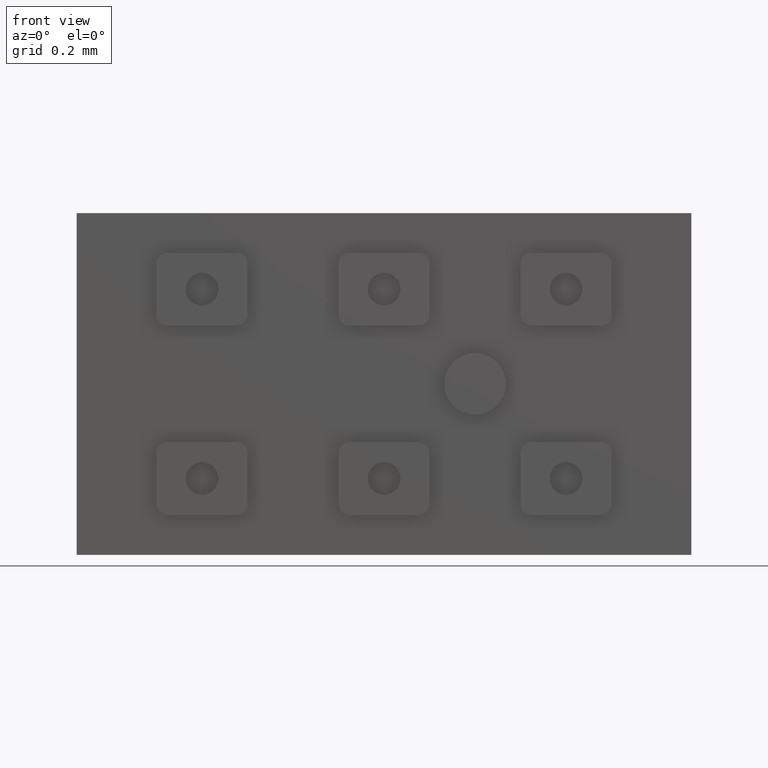
[diagram: clean part render]
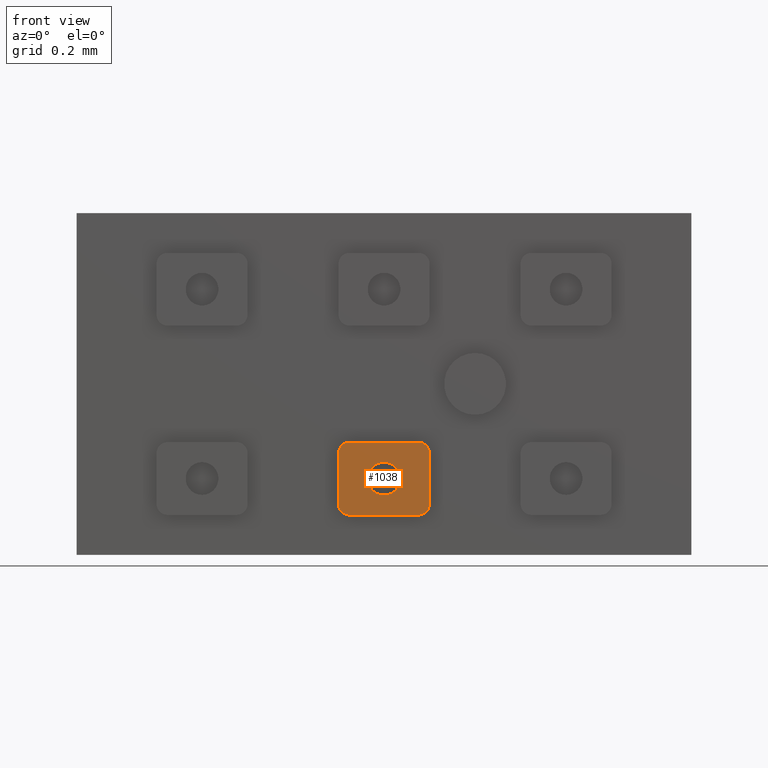
[diagram: same view with one face highlighted and labeled with its STEP entity id]
A machine part, front view. The second image highlights one B-rep face of the part: STEP entity #1038.
In plain terms, the highlighted planar face has unit normal (0, 1, 0).
Its self-contained STEP definition (entity closure, byte-faithful):
#40 = VECTOR ( 'NONE', #1185, 1000.000000000000000 ) ;
#59 = EDGE_CURVE ( 'NONE', #1831, #2216, #1212, .T. ) ;
#66 = DIRECTION ( 'NONE',  ( 0.000000000000000000, 1.000000000000000000, 0.000000000000000000 ) ) ;
#78 = CARTESIAN_POINT ( 'NONE',  ( -0.09500000000000002887, -0.2750000000000000222, -0.1599999999999965061 ) ) ;
#103 = VERTEX_POINT ( 'NONE', #866 ) ;
#109 = DIRECTION ( 'NONE',  ( 0.000000000000000000, 0.000000000000000000, 1.000000000000000000 ) ) ;
#111 = CARTESIAN_POINT ( 'NONE',  ( -0.1250000000000000000, -0.2750000000000000222, -0.1899999999999964773 ) ) ;
#125 = DIRECTION ( 'NONE',  ( 0.000000000000000000, 0.000000000000000000, -1.000000000000000000 ) ) ;
#191 = ORIENTED_EDGE ( 'NONE', *, *, #1364, .F. ) ;
#225 = EDGE_CURVE ( 'NONE', #559, #1011, #1842, .T. ) ;
#245 = LINE ( 'NONE', #895, #2153 ) ;
#262 = DIRECTION ( 'NONE',  ( 0.000000000000000000, 1.000000000000000000, 0.000000000000000000 ) ) ;
#287 = LINE ( 'NONE', #446, #1399 ) ;
#302 = CARTESIAN_POINT ( 'NONE',  ( 0.1250000000000000555, -0.2750000000000000222, -0.3299999999999965183 ) ) ;
#308 = DIRECTION ( 'NONE',  ( 0.000000000000000000, 1.000000000000000000, 0.000000000000000000 ) ) ;
#317 = ORIENTED_EDGE ( 'NONE', *, *, #2331, .F. ) ;
#327 = CIRCLE ( 'NONE', #500, 0.02999999999999997113 ) ;
#330 = AXIS2_PLACEMENT_3D ( 'NONE', #1470, #2228, #1284 ) ;
#344 = ORIENTED_EDGE ( 'NONE', *, *, #1436, .F. ) ;
#374 = VERTEX_POINT ( 'NONE', #1966 ) ;
#385 = ORIENTED_EDGE ( 'NONE', *, *, #643, .F. ) ;
#388 = CARTESIAN_POINT ( 'NONE',  ( -0.1250000000000000000, -0.2750000000000000222, -0.3299999999999965183 ) ) ;
#428 = ORIENTED_EDGE ( 'NONE', *, *, #59, .T. ) ;
#434 = CARTESIAN_POINT ( 'NONE',  ( 0.000000000000000000, -0.2750000000000000222, -0.2149999999999967215 ) ) ;
#435 = EDGE_CURVE ( 'NONE', #1529, #984, #327, .T. ) ;
#446 = CARTESIAN_POINT ( 'NONE',  ( 0.1250000000000001110, -0.2750000000000000222, -0.3299999999999965183 ) ) ;
#500 = AXIS2_PLACEMENT_3D ( 'NONE', #1009, #1395, #1380 ) ;
#510 = DIRECTION ( 'NONE',  ( 0.000000000000000000, 1.000000000000000000, 0.000000000000000000 ) ) ;
#559 = VERTEX_POINT ( 'NONE', #1270 ) ;
#584 = EDGE_LOOP ( 'NONE', ( #385, #344, #2299, #1929, #2007, #317, #2237, #191 ) ) ;
#612 = AXIS2_PLACEMENT_3D ( 'NONE', #1432, #262, #1687 ) ;
#613 = VERTEX_POINT ( 'NONE', #302 ) ;
#625 = AXIS2_PLACEMENT_3D ( 'NONE', #849, #66, #109 ) ;
#641 = DIRECTION ( 'NONE',  ( -1.000000000000000000, -0.000000000000000000, -0.000000000000000000 ) ) ;
#643 = EDGE_CURVE ( 'NONE', #374, #103, #1083, .T. ) ;
#720 = DIRECTION ( 'NONE',  ( 0.000000000000000000, 1.000000000000000000, -0.000000000000000000 ) ) ;
#817 = AXIS2_PLACEMENT_3D ( 'NONE', #1135, #308, #1106 ) ;
#849 = CARTESIAN_POINT ( 'NONE',  ( -0.09500000000000002887, -0.2750000000000000222, -0.3299999999999965183 ) ) ;
#859 = CIRCLE ( 'NONE', #817, 0.03000000000000002318 ) ;
#866 = CARTESIAN_POINT ( 'NONE',  ( -0.1250000000000000000, -0.2750000000000000222, -0.3299999999999965183 ) ) ;
#895 = CARTESIAN_POINT ( 'NONE',  ( -0.09500000000000002887, -0.2750000000000000222, -0.3599999999999964895 ) ) ;
#900 = VECTOR ( 'NONE', #1663, 1000.000000000000000 ) ;
#966 = CARTESIAN_POINT ( 'NONE',  ( 0.09500000000000002887, -0.2750000000000000222, -0.3599999999999964895 ) ) ;
#984 = VERTEX_POINT ( 'NONE', #1174 ) ;
#987 = EDGE_LOOP ( 'NONE', ( #1405, #428 ) ) ;
#1009 = CARTESIAN_POINT ( 'NONE',  ( -0.09500000000000002887, -0.2750000000000000222, -0.1899999999999964773 ) ) ;
#1011 = VERTEX_POINT ( 'NONE', #1873 ) ;
#1026 = EDGE_CURVE ( 'NONE', #1011, #613, #287, .T. ) ;
#1038 = ADVANCED_FACE ( 'NONE', ( #1051, #1884 ), #1850, .F. ) ;
#1051 = FACE_BOUND ( 'NONE', #987, .T. ) ;
#1068 = CARTESIAN_POINT ( 'NONE',  ( 5.510910596163072607E-18, -0.2750000000000000222, -0.3049999999999963851 ) ) ;
#1083 = CIRCLE ( 'NONE', #625, 0.02999999999999997113 ) ;
#1101 = CARTESIAN_POINT ( 'NONE',  ( 0.000000000000000000, -0.2750000000000000222, -0.2599999999999965672 ) ) ;
#1106 = DIRECTION ( 'NONE',  ( 0.000000000000000000, 0.000000000000000000, 1.000000000000000000 ) ) ;
#1135 = CARTESIAN_POINT ( 'NONE',  ( 0.09500000000000002887, -0.2750000000000000222, -0.3299999999999965183 ) ) ;
#1174 = CARTESIAN_POINT ( 'NONE',  ( -0.09500000000000002887, -0.2750000000000000222, -0.1599999999999965061 ) ) ;
#1185 = DIRECTION ( 'NONE',  ( 0.000000000000000000, 0.000000000000000000, 1.000000000000000000 ) ) ;
#1195 = EDGE_CURVE ( 'NONE', #613, #1601, #859, .T. ) ;
#1212 = CIRCLE ( 'NONE', #330, 0.04499999999999984568 ) ;
#1267 = DIRECTION ( 'NONE',  ( -0.000000000000000000, -0.000000000000000000, -1.000000000000000000 ) ) ;
#1270 = CARTESIAN_POINT ( 'NONE',  ( 0.09500000000000002887, -0.2750000000000000222, -0.1599999999999964506 ) ) ;
#1284 = DIRECTION ( 'NONE',  ( 0.000000000000000000, 0.000000000000000000, 1.000000000000000000 ) ) ;
#1364 = EDGE_CURVE ( 'NONE', #103, #1529, #2562, .T. ) ;
#1380 = DIRECTION ( 'NONE',  ( 0.000000000000000000, 0.000000000000000000, 1.000000000000000000 ) ) ;
#1395 = DIRECTION ( 'NONE',  ( 0.000000000000000000, 1.000000000000000000, 0.000000000000000000 ) ) ;
#1399 = VECTOR ( 'NONE', #1267, 1000.000000000000000 ) ;
#1405 = ORIENTED_EDGE ( 'NONE', *, *, #1510, .T. ) ;
#1432 = CARTESIAN_POINT ( 'NONE',  ( -0.09500000000000002887, -0.2750000000000000222, -0.3299999999999965183 ) ) ;
#1436 = EDGE_CURVE ( 'NONE', #1601, #374, #245, .T. ) ;
#1461 = AXIS2_PLACEMENT_3D ( 'NONE', #1527, #720, #125 ) ;
#1470 = CARTESIAN_POINT ( 'NONE',  ( 0.000000000000000000, -0.2750000000000000222, -0.2599999999999965672 ) ) ;
#1510 = EDGE_CURVE ( 'NONE', #2216, #1831, #1616, .T. ) ;
#1527 = CARTESIAN_POINT ( 'NONE',  ( 0.09500000000000002887, -0.2750000000000000222, -0.1899999999999964773 ) ) ;
#1529 = VERTEX_POINT ( 'NONE', #111 ) ;
#1601 = VERTEX_POINT ( 'NONE', #966 ) ;
#1616 = CIRCLE ( 'NONE', #1946, 0.04499999999999984568 ) ;
#1663 = DIRECTION ( 'NONE',  ( 1.000000000000000000, 0.000000000000000000, 0.000000000000000000 ) ) ;
#1687 = DIRECTION ( 'NONE',  ( 0.000000000000000000, -0.000000000000000000, 1.000000000000000000 ) ) ;
#1831 = VERTEX_POINT ( 'NONE', #1068 ) ;
#1842 = CIRCLE ( 'NONE', #1461, 0.03000000000000002318 ) ;
#1850 = PLANE ( 'NONE',  #612 ) ;
#1873 = CARTESIAN_POINT ( 'NONE',  ( 0.1250000000000001110, -0.2750000000000000222, -0.1899999999999964773 ) ) ;
#1884 = FACE_OUTER_BOUND ( 'NONE', #584, .T. ) ;
#1929 = ORIENTED_EDGE ( 'NONE', *, *, #1026, .F. ) ;
#1946 = AXIS2_PLACEMENT_3D ( 'NONE', #1101, #510, #2117 ) ;
#1966 = CARTESIAN_POINT ( 'NONE',  ( -0.09500000000000002887, -0.2750000000000000222, -0.3599999999999964895 ) ) ;
#2007 = ORIENTED_EDGE ( 'NONE', *, *, #225, .F. ) ;
#2052 = LINE ( 'NONE', #78, #900 ) ;
#2117 = DIRECTION ( 'NONE',  ( 0.000000000000000000, 0.000000000000000000, 1.000000000000000000 ) ) ;
#2153 = VECTOR ( 'NONE', #641, 1000.000000000000000 ) ;
#2216 = VERTEX_POINT ( 'NONE', #434 ) ;
#2228 = DIRECTION ( 'NONE',  ( 0.000000000000000000, 1.000000000000000000, 0.000000000000000000 ) ) ;
#2237 = ORIENTED_EDGE ( 'NONE', *, *, #435, .F. ) ;
#2299 = ORIENTED_EDGE ( 'NONE', *, *, #1195, .F. ) ;
#2331 = EDGE_CURVE ( 'NONE', #984, #559, #2052, .T. ) ;
#2562 = LINE ( 'NONE', #388, #40 ) ;